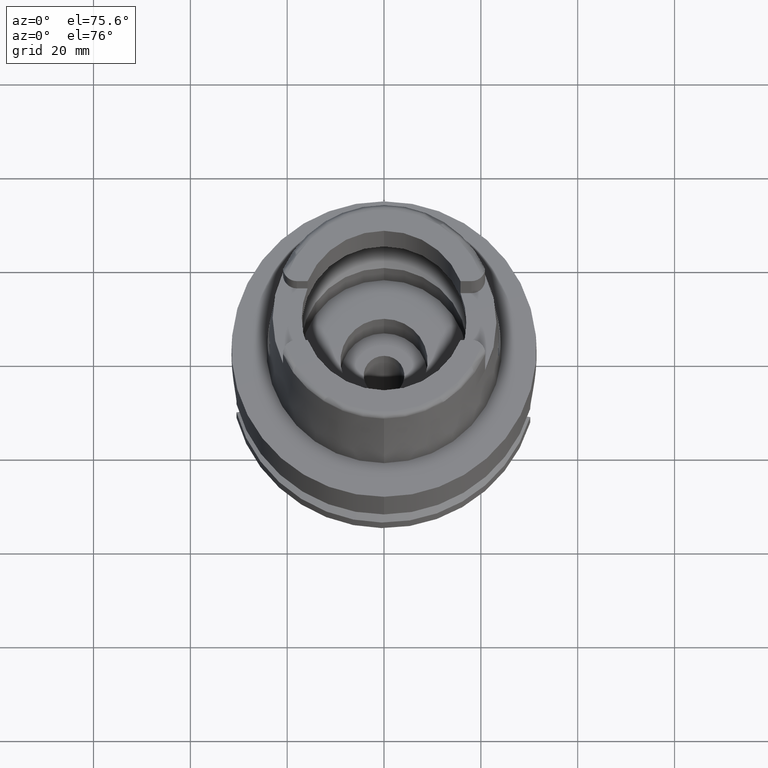
[diagram: clean part render]
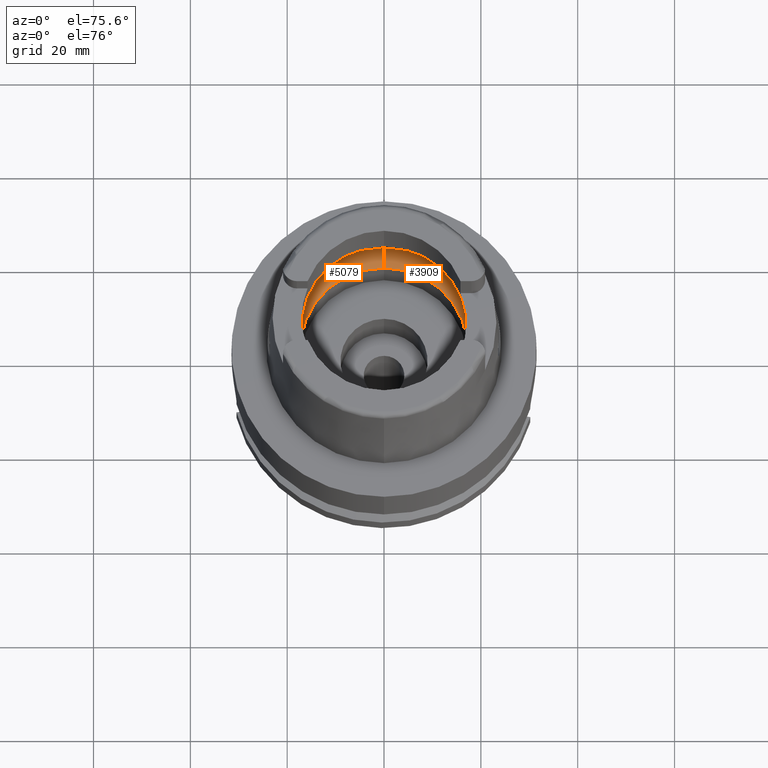
[diagram: same view with one multi-face feature highlighted, each face labeled with its STEP entity id]
A machine part, auxiliary view. The highlighted faces form ONE feature: a constant-radius fillet chain: 2 tangent blend faces with common blend radius 8 mm. The faces share edges in the B-rep.
Their STEP definitions:
[1] entity #3909 (Torus):
#37 = CARTESIAN_POINT ( 'NONE',  ( 19.93292500493674524, -1.081634238850528451, 5.408973163817647034 ) ) ;
#45 = CIRCLE ( 'NONE', #4938, 20.00000000000000000 ) ;
#123 = CARTESIAN_POINT ( 'NONE',  ( 19.84575864665999845, 2.479085262491000030, 6.186348233825000875 ) ) ;
#149 = CARTESIAN_POINT ( 'NONE',  ( 19.92517798419736508, 1.343609062691706768, 5.498960846759680443 ) ) ;
#214 = EDGE_CURVE ( 'NONE', #2460, #4014, #45, .T. ) ;
#365 = EDGE_CURVE ( 'NONE', #4602, #2460, #4300, .T. ) ;
#466 = CARTESIAN_POINT ( 'NONE',  ( 0.0000000000000000000, 12.00000000000000000, 6.186348233825000875 ) ) ;
#505 = B_SPLINE_CURVE_WITH_KNOTS ( 'NONE', 3,
 ( #3383, #4713, #5602, #1736, #1770, #37, #5167, #3010, #4745, #2587, #4315, #4773, #4690, #883, #4342 ),
 .UNSPECIFIED., .F., .F.,
 ( 4, 2, 2, 1, 1, 1, 2, 2, 4 ),
 ( 0.0000000000000000000, 0.2499999999999987788, 0.3749999999999982792, 0.4374999999999980571, 0.4687499999999978906, 0.4843749999999975020, 0.4921874999999975575, 0.4999999999999975575, 1.000000000000000000 ),
 .UNSPECIFIED. ) ;
#573 = CARTESIAN_POINT ( 'NONE',  ( 19.92391571847978327, 1.379818936262329210, 5.513021260670505796 ) ) ;
#608 = CARTESIAN_POINT ( 'NONE',  ( 19.94501428475999916, 0.0000000000000000000, 5.250000000000000000 ) ) ;
#660 = DIRECTION ( 'NONE',  ( 0.0000000000000000000, 0.0000000000000000000, 1.000000000000000000 ) ) ;
#724 = ORIENTED_EDGE ( 'NONE', *, *, #214, .F. ) ;
#883 = CARTESIAN_POINT ( 'NONE',  ( 19.88332301270218849, -2.178372191595286722, 5.921392438207989883 ) ) ;
#926 = CARTESIAN_POINT ( 'NONE',  ( 0.0000000000000000000, -17.25000000000000000, 0.1500000000000999700 ) ) ;
#938 = ORIENTED_EDGE ( 'NONE', *, *, #3541, .F. ) ;
#1004 = CARTESIAN_POINT ( 'NONE',  ( 19.91448538158095616, 1.610508053762637504, 5.612924102263966653 ) ) ;
#1075 = EDGE_LOOP ( 'NONE', ( #1702, #724, #2070, #938, #3111, #5162, #4305 ) ) ;
#1218 = DIRECTION ( 'NONE',  ( 0.0000000000000000000, 0.0000000000000000000, -1.000000000000000000 ) ) ;
#1262 = FACE_OUTER_BOUND ( 'NONE', #1075, .T. ) ;
#1431 = CARTESIAN_POINT ( 'NONE',  ( 19.88058969236887918, 2.158413152842832083, 5.925203484518751118 ) ) ;
#1633 = DIRECTION ( 'NONE',  ( -1.000000000000000000, 0.0000000000000000000, 0.0000000000000000000 ) ) ;
#1638 = DIRECTION ( 'NONE',  ( 0.0000000000000000000, 1.000000000000000000, 0.0000000000000000000 ) ) ;
#1661 = CARTESIAN_POINT ( 'NONE',  ( 0.0000000000000000000, 20.00000000000000000, 6.186348233825000875 ) ) ;
#1702 = ORIENTED_EDGE ( 'NONE', *, *, #2694, .F. ) ;
#1729 = EDGE_CURVE ( 'NONE', #4502, #5345, #2371, .T. ) ;
#1736 = CARTESIAN_POINT ( 'NONE',  ( 19.93856666885426776, -0.8185636124059638696, 5.338679045133562617 ) ) ;
#1770 = CARTESIAN_POINT ( 'NONE',  ( 19.93655178888372248, -0.9261198900591437466, 5.364559530321087344 ) ) ;
#1922 = VERTEX_POINT ( 'NONE', #926 ) ;
#1991 = DIRECTION ( 'NONE',  ( 0.9922879323327794543, -0.1239542631244973381, 0.0000000000000000000 ) ) ;
#2031 = AXIS2_PLACEMENT_3D ( 'NONE', #2421, #1633, #4171 ) ;
#2036 = AXIS2_PLACEMENT_3D ( 'NONE', #466, #5269, #5300 ) ;
#2070 = ORIENTED_EDGE ( 'NONE', *, *, #365, .F. ) ;
#2175 = VERTEX_POINT ( 'NONE', #608 ) ;
#2332 = CARTESIAN_POINT ( 'NONE',  ( 19.94501428475999916, 0.4960402853743813290, 5.250000000000000888 ) ) ;
#2371 = CIRCLE ( 'NONE', #3102, 20.00000000000001421 ) ;
#2401 = B_SPLINE_CURVE_WITH_KNOTS ( 'NONE', 3,
 ( #123, #5318, #1431, #3162, #4891, #1004, #2722, #4461, #573, #4031, #149, #2754, #4491, #2332, #4056 ),
 .UNSPECIFIED., .F., .F.,
 ( 4, 2, 2, 1, 1, 1, 2, 2, 4 ),
 ( 0.0000000000000000000, 0.2500000000000098810, 0.3750000000000143774, 0.4375000000000168199, 0.4687500000000177636, 0.4843750000000178746, 0.4921875000000178191, 0.5000000000000177636, 1.000000000000000000 ),
 .UNSPECIFIED. ) ;
#2421 = CARTESIAN_POINT ( 'NONE',  ( 0.0000000000000000000, -12.00000000000000000, 6.186348233825000875 ) ) ;
#2437 = EDGE_CURVE ( 'NONE', #1922, #5345, #5570, .T. ) ;
#2460 = VERTEX_POINT ( 'NONE', #1661 ) ;
#2497 = CARTESIAN_POINT ( 'NONE',  ( 0.0000000000000000000, 0.0000000000000000000, 6.186348233825000875 ) ) ;
#2587 = CARTESIAN_POINT ( 'NONE',  ( 19.92646951840612246, -1.305026090026948804, 5.484399317726082579 ) ) ;
#2694 = EDGE_CURVE ( 'NONE', #4014, #2175, #2401, .T. ) ;
#2722 = CARTESIAN_POINT ( 'NONE',  ( 19.91819973341328875, 1.528786876979157716, 5.574825955112756581 ) ) ;
#2754 = CARTESIAN_POINT ( 'NONE',  ( 19.92547020324161622, 1.335027099705274445, 5.495682146681705404 ) ) ;
#2918 = CIRCLE ( 'NONE', #4367, 17.25000000000000000 ) ;
#2924 = DIRECTION ( 'NONE',  ( 0.0000000000000000000, 1.000000000000000000, 0.0000000000000000000 ) ) ;
#3005 = EDGE_CURVE ( 'NONE', #2175, #4502, #505, .T. ) ;
#3009 = DIRECTION ( 'NONE',  ( 0.0000000000000000000, 0.0000000000000000000, 1.000000000000000000 ) ) ;
#3010 = CARTESIAN_POINT ( 'NONE',  ( 19.92840411800285594, -1.244366584479167814, 5.462313247185328180 ) ) ;
#3102 = AXIS2_PLACEMENT_3D ( 'NONE', #3247, #4955, #1991 ) ;
#3111 = ORIENTED_EDGE ( 'NONE', *, *, #2437, .T. ) ;
#3162 = CARTESIAN_POINT ( 'NONE',  ( 19.90056795285840252, 1.871072381427654641, 5.748193827892907670 ) ) ;
#3171 = CARTESIAN_POINT ( 'NONE',  ( 19.84575864665999845, -2.479085262491000030, 6.186348233825000875 ) ) ;
#3247 = CARTESIAN_POINT ( 'NONE',  ( 0.0000000000000000000, 0.0000000000000000000, 6.186348233825000875 ) ) ;
#3306 = DIRECTION ( 'NONE',  ( 0.0000000000000000000, -1.000000000000000000, 0.0000000000000000000 ) ) ;
#3383 = CARTESIAN_POINT ( 'NONE',  ( 19.94501428475999916, 0.0000000000000000000, 5.250000000000000000 ) ) ;
#3541 = EDGE_CURVE ( 'NONE', #1922, #4602, #2918, .T. ) ;
#3909 = ADVANCED_FACE ( 'NONE', ( #1262 ), #4091, .F. ) ;
#4014 = VERTEX_POINT ( 'NONE', #4405 ) ;
#4031 = CARTESIAN_POINT ( 'NONE',  ( 19.92467627844355249, 1.358116918539703288, 5.504563131532022702 ) ) ;
#4056 = CARTESIAN_POINT ( 'NONE',  ( 19.94501428475999916, 0.0000000000000000000, 5.250000000000000000 ) ) ;
#4091 = TOROIDAL_SURFACE ( 'NONE', #4274, 12.00000000000000000, 8.000000000000000000 ) ;
#4171 = DIRECTION ( 'NONE',  ( 0.0000000000000000000, -0.6562500000000006661, -0.7545435292281016393 ) ) ;
#4274 = AXIS2_PLACEMENT_3D ( 'NONE', #2497, #3009, #2924 ) ;
#4300 = CIRCLE ( 'NONE', #2036, 7.999999999999992895 ) ;
#4305 = ORIENTED_EDGE ( 'NONE', *, *, #3005, .F. ) ;
#4315 = CARTESIAN_POINT ( 'NONE',  ( 19.92607283891191727, -1.317061137141596561, 5.488890315884850324 ) ) ;
#4342 = CARTESIAN_POINT ( 'NONE',  ( 19.84575864665999845, -2.479085262491000030, 6.186348233825000875 ) ) ;
#4343 = CARTESIAN_POINT ( 'NONE',  ( 0.0000000000000000000, -20.00000000000000000, 6.186348233825000875 ) ) ;
#4367 = AXIS2_PLACEMENT_3D ( 'NONE', #5461, #660, #3306 ) ;
#4405 = CARTESIAN_POINT ( 'NONE',  ( 19.84575864665999845, 2.479085262491000030, 6.186348233825000875 ) ) ;
#4461 = CARTESIAN_POINT ( 'NONE',  ( 19.92208506923287104, 1.430037391292800830, 5.533134286468000873 ) ) ;
#4491 = CARTESIAN_POINT ( 'NONE',  ( 19.93856675271270618, 0.9459631445367676639, 5.348221889603026469 ) ) ;
#4502 = VERTEX_POINT ( 'NONE', #3171 ) ;
#4602 = VERTEX_POINT ( 'NONE', #5041 ) ;
#4690 = CARTESIAN_POINT ( 'NONE',  ( 19.90996060949646207, -1.795819319521763990, 5.670329520825307057 ) ) ;
#4713 = CARTESIAN_POINT ( 'NONE',  ( 19.94501428476000271, -0.2480012822880987844, 5.249999999999999112 ) ) ;
#4745 = CARTESIAN_POINT ( 'NONE',  ( 19.92705981527248937, -1.286926606873724177, 5.477698152406411225 ) ) ;
#4773 = CARTESIAN_POINT ( 'NONE',  ( 19.92591691872320681, -1.321755966737424792, 5.490652197696729075 ) ) ;
#4891 = CARTESIAN_POINT ( 'NONE',  ( 19.90654459260023401, 1.770006697072565638, 5.691880654306289422 ) ) ;
#4938 = AXIS2_PLACEMENT_3D ( 'NONE', #5153, #1218, #1638 ) ;
#4955 = DIRECTION ( 'NONE',  ( 0.0000000000000000000, 0.0000000000000000000, -1.000000000000000000 ) ) ;
#5041 = CARTESIAN_POINT ( 'NONE',  ( 0.0000000000000000000, 17.25000000000000000, 0.1500000000000999700 ) ) ;
#5153 = CARTESIAN_POINT ( 'NONE',  ( 0.0000000000000000000, 0.0000000000000000000, 6.186348233825000875 ) ) ;
#5162 = ORIENTED_EDGE ( 'NONE', *, *, #1729, .F. ) ;
#5167 = CARTESIAN_POINT ( 'NONE',  ( 19.93096049696546856, -1.157939335591919860, 5.432578789541300246 ) ) ;
#5269 = DIRECTION ( 'NONE',  ( 1.000000000000000000, 0.0000000000000000000, 0.0000000000000000000 ) ) ;
#5300 = DIRECTION ( 'NONE',  ( 0.0000000000000000000, 0.6562500000000006661, -0.7545435292281016393 ) ) ;
#5318 = CARTESIAN_POINT ( 'NONE',  ( 19.86453973035713005, 2.328737527431126608, 6.053878089965426312 ) ) ;
#5345 = VERTEX_POINT ( 'NONE', #4343 ) ;
#5461 = CARTESIAN_POINT ( 'NONE',  ( 0.0000000000000000000, 0.0000000000000000000, 0.1500000000000999700 ) ) ;
#5570 = CIRCLE ( 'NONE', #2031, 7.999999999999992895 ) ;
#5602 = CARTESIAN_POINT ( 'NONE',  ( 19.94340238078356720, -0.4850176595367738930, 5.274610361541468784 ) ) ;
[2] entity #5079 (Torus):
#114 = EDGE_LOOP ( 'NONE', ( #1363, #1141, #3877, #2068, #4974, #2518, #2858 ) ) ;
#206 = CARTESIAN_POINT ( 'NONE',  ( -19.91819960699401193, -1.528790138807751164, 5.574827418276589341 ) ) ;
#280 = CARTESIAN_POINT ( 'NONE',  ( -19.88332310116147283, 2.178371483505385786, 5.921391814315846602 ) ) ;
#327 = VERTEX_POINT ( 'NONE', #3612 ) ;
#365 = EDGE_CURVE ( 'NONE', #4602, #2460, #4300, .T. ) ;
#450 = DIRECTION ( 'NONE',  ( 0.0000000000000000000, -1.000000000000000000, 0.0000000000000000000 ) ) ;
#466 = CARTESIAN_POINT ( 'NONE',  ( 0.0000000000000000000, 12.00000000000000000, 6.186348233825000875 ) ) ;
#502 = CARTESIAN_POINT ( 'NONE',  ( 0.0000000000000000000, 0.0000000000000000000, 0.1500000000000999700 ) ) ;
#682 = CARTESIAN_POINT ( 'NONE',  ( -19.92591704426989452, 1.321751840890049490, 5.490650643677390974 ) ) ;
#746 = CARTESIAN_POINT ( 'NONE',  ( -19.94501428475999916, 0.0000000000000000000, 5.250000000000000000 ) ) ;
#753 = TOROIDAL_SURFACE ( 'NONE', #2382, 12.00000000000000000, 8.000000000000000000 ) ;
#921 = DIRECTION ( 'NONE',  ( -0.9922879323327794543, 0.1239542631244973381, 0.0000000000000000000 ) ) ;
#926 = CARTESIAN_POINT ( 'NONE',  ( 0.0000000000000000000, -17.25000000000000000, 0.1500000000000999700 ) ) ;
#941 = AXIS2_PLACEMENT_3D ( 'NONE', #3509, #3081, #921 ) ;
#1019 = CIRCLE ( 'NONE', #5098, 17.25000000000000000 ) ;
#1045 = CARTESIAN_POINT ( 'NONE',  ( -19.90056784349247820, -1.871074272730828048, 5.748194928871746434 ) ) ;
#1089 = CARTESIAN_POINT ( 'NONE',  ( -19.93655184384261858, 0.9261166967963114782, 5.364558725656097593 ) ) ;
#1141 = ORIENTED_EDGE ( 'NONE', *, *, #2437, .F. ) ;
#1175 = CARTESIAN_POINT ( 'NONE',  ( -19.93096058823649130, 1.157935579649966629, 5.432577573767241041 ) ) ;
#1223 = EDGE_CURVE ( 'NONE', #5345, #2669, #4908, .T. ) ;
#1363 = ORIENTED_EDGE ( 'NONE', *, *, #1223, .F. ) ;
#1462 = CARTESIAN_POINT ( 'NONE',  ( -19.84575864665999845, -2.479085262491000030, 6.186348233825000875 ) ) ;
#1598 = EDGE_CURVE ( 'NONE', #4602, #1922, #1019, .T. ) ;
#1610 = CARTESIAN_POINT ( 'NONE',  ( -19.91448525756728927, -1.610510976265786987, 5.612925495665686881 ) ) ;
#1633 = DIRECTION ( 'NONE',  ( -1.000000000000000000, 0.0000000000000000000, 0.0000000000000000000 ) ) ;
#1634 = CARTESIAN_POINT ( 'NONE',  ( -19.92391559123418787, -1.379822842001579009, 5.513022806674898746 ) ) ;
#1661 = CARTESIAN_POINT ( 'NONE',  ( 0.0000000000000000000, 20.00000000000000000, 6.186348233825000875 ) ) ;
#1922 = VERTEX_POINT ( 'NONE', #926 ) ;
#1963 = CARTESIAN_POINT ( 'NONE',  ( -19.94501428476000271, 0.2480002814738951344, 5.249999999999999112 ) ) ;
#1986 = CARTESIAN_POINT ( 'NONE',  ( -19.94340239125193293, 0.4850157974226460000, 5.274610163457148282 ) ) ;
#2018 = CARTESIAN_POINT ( 'NONE',  ( -19.84575864665999845, 2.479085262489999941, 6.186348233825000875 ) ) ;
#2031 = AXIS2_PLACEMENT_3D ( 'NONE', #2421, #1633, #4171 ) ;
#2036 = AXIS2_PLACEMENT_3D ( 'NONE', #466, #5269, #5300 ) ;
#2068 = ORIENTED_EDGE ( 'NONE', *, *, #365, .T. ) ;
#2275 = CARTESIAN_POINT ( 'NONE',  ( -19.84575864665999845, 2.479085262489999941, 6.186348233825000875 ) ) ;
#2308 = FACE_OUTER_BOUND ( 'NONE', #114, .T. ) ;
#2313 = DIRECTION ( 'NONE',  ( 0.0000000000000000000, 0.0000000000000000000, 1.000000000000000000 ) ) ;
#2333 = CARTESIAN_POINT ( 'NONE',  ( 0.0000000000000000000, 0.0000000000000000000, 6.186348233825000875 ) ) ;
#2364 = CARTESIAN_POINT ( 'NONE',  ( -19.90654447560747542, -1.770008974173177263, 5.691881888190377659 ) ) ;
#2382 = AXIS2_PLACEMENT_3D ( 'NONE', #2333, #4057, #5344 ) ;
#2386 = CARTESIAN_POINT ( 'NONE',  ( -19.94501428475999916, 0.0000000000000000000, 5.250000000000000000 ) ) ;
#2397 = CARTESIAN_POINT ( 'NONE',  ( -19.92208494194046509, -1.430041077684033990, 5.533135808937241329 ) ) ;
#2421 = CARTESIAN_POINT ( 'NONE',  ( 0.0000000000000000000, -12.00000000000000000, 6.186348233825000875 ) ) ;
#2437 = EDGE_CURVE ( 'NONE', #1922, #5345, #5570, .T. ) ;
#2460 = VERTEX_POINT ( 'NONE', #1661 ) ;
#2518 = ORIENTED_EDGE ( 'NONE', *, *, #2788, .F. ) ;
#2669 = VERTEX_POINT ( 'NONE', #3999 ) ;
#2788 = EDGE_CURVE ( 'NONE', #327, #5000, #4625, .T. ) ;
#2858 = ORIENTED_EDGE ( 'NONE', *, *, #4597, .F. ) ;
#3038 = CARTESIAN_POINT ( 'NONE',  ( 0.0000000000000000000, 0.0000000000000000000, 6.186348233825000875 ) ) ;
#3081 = DIRECTION ( 'NONE',  ( 0.0000000000000000000, 0.0000000000000000000, -1.000000000000000000 ) ) ;
#3193 = CARTESIAN_POINT ( 'NONE',  ( -19.86453968564131500, -2.328737885376345407, 6.053878405347992597 ) ) ;
#3240 = CARTESIAN_POINT ( 'NONE',  ( -19.92607296192538513, 1.317057065037986030, 5.488888788417265907 ) ) ;
#3351 = CARTESIAN_POINT ( 'NONE',  ( -19.93292508344945801, 1.081630659659294169, 5.408972087979956989 ) ) ;
#3358 = CARTESIAN_POINT ( 'NONE',  ( -19.92517785718085577, -1.343613127942956842, 5.498962406970089312 ) ) ;
#3362 = EDGE_CURVE ( 'NONE', #5000, #2460, #4650, .T. ) ;
#3509 = CARTESIAN_POINT ( 'NONE',  ( 0.0000000000000000000, 0.0000000000000000000, 6.186348233825000875 ) ) ;
#3612 = CARTESIAN_POINT ( 'NONE',  ( -19.94501428475999916, 0.0000000000000000000, 5.250000000000000000 ) ) ;
#3661 = CARTESIAN_POINT ( 'NONE',  ( -19.92705993187612989, 1.286922590644232978, 5.477696685208107930 ) ) ;
#3688 = CARTESIAN_POINT ( 'NONE',  ( -19.93856671072771292, 0.8185607198028845843, 5.338678409714962214 ) ) ;
#3772 = CARTESIAN_POINT ( 'NONE',  ( -19.90996073982917380, 1.795817278995830657, 5.670328124222732136 ) ) ;
#3877 = ORIENTED_EDGE ( 'NONE', *, *, #1598, .F. ) ;
#3994 = AXIS2_PLACEMENT_3D ( 'NONE', #3038, #4795, #450 ) ;
#3999 = CARTESIAN_POINT ( 'NONE',  ( -19.84575864665999845, -2.479085262491000030, 6.186348233825000875 ) ) ;
#4057 = DIRECTION ( 'NONE',  ( 0.0000000000000000000, 0.0000000000000000000, 1.000000000000000000 ) ) ;
#4140 = B_SPLINE_CURVE_WITH_KNOTS ( 'NONE', 3,
 ( #1462, #3193, #4927, #1045, #2364, #1610, #206, #2397, #1634, #5092, #3358, #4981, #4549, #4580, #746 ),
 .UNSPECIFIED., .F., .F.,
 ( 4, 2, 2, 1, 1, 1, 2, 2, 4 ),
 ( 0.0000000000000000000, 0.2500000000000051070, 0.3750000000000077716, 0.4375000000000091038, 0.4687500000000098255, 0.4843750000000101030, 0.4921875000000099920, 0.5000000000000098810, 1.000000000000000000 ),
 .UNSPECIFIED. ) ;
#4171 = DIRECTION ( 'NONE',  ( 0.0000000000000000000, -0.6562500000000006661, -0.7545435292281016393 ) ) ;
#4227 = CARTESIAN_POINT ( 'NONE',  ( -19.92646963884338263, 1.305022040076338818, 5.484397814373272340 ) ) ;
#4300 = CIRCLE ( 'NONE', #2036, 7.999999999999992895 ) ;
#4343 = CARTESIAN_POINT ( 'NONE',  ( 0.0000000000000000000, -20.00000000000000000, 6.186348233825000875 ) ) ;
#4538 = CARTESIAN_POINT ( 'NONE',  ( -19.92840422587602944, 1.244362650384072122, 5.462311864171463860 ) ) ;
#4549 = CARTESIAN_POINT ( 'NONE',  ( -19.93856671042052398, -0.9459665778997381480, 5.348222674928019060 ) ) ;
#4580 = CARTESIAN_POINT ( 'NONE',  ( -19.94501428475999560, -0.4960423020627297008, 5.249999999999995559 ) ) ;
#4597 = EDGE_CURVE ( 'NONE', #2669, #327, #4140, .T. ) ;
#4602 = VERTEX_POINT ( 'NONE', #5041 ) ;
#4625 = B_SPLINE_CURVE_WITH_KNOTS ( 'NONE', 3,
 ( #2386, #1963, #1986, #3688, #1089, #3351, #1175, #4538, #3661, #4227, #3240, #682, #3772, #280, #2018 ),
 .UNSPECIFIED., .F., .F.,
 ( 4, 2, 2, 1, 1, 1, 2, 2, 4 ),
 ( 0.0000000000000000000, 0.2499999999999956146, 0.3749999999999934497, 0.4374999999999923395, 0.4687499999999917288, 0.4843749999999914513, 0.4921874999999914513, 0.4999999999999915623, 1.000000000000000000 ),
 .UNSPECIFIED. ) ;
#4650 = CIRCLE ( 'NONE', #941, 20.00000000000001421 ) ;
#4795 = DIRECTION ( 'NONE',  ( 0.0000000000000000000, 0.0000000000000000000, -1.000000000000000000 ) ) ;
#4896 = DIRECTION ( 'NONE',  ( 0.0000000000000000000, 1.000000000000000000, 0.0000000000000000000 ) ) ;
#4908 = CIRCLE ( 'NONE', #3994, 20.00000000000000000 ) ;
#4927 = CARTESIAN_POINT ( 'NONE',  ( -19.88058961472209774, -2.158414018199903417, 5.925204145833316893 ) ) ;
#4974 = ORIENTED_EDGE ( 'NONE', *, *, #3362, .F. ) ;
#4981 = CARTESIAN_POINT ( 'NONE',  ( -19.92547007504345302, -1.335031240339097369, 5.495683724100088874 ) ) ;
#5000 = VERTEX_POINT ( 'NONE', #2275 ) ;
#5041 = CARTESIAN_POINT ( 'NONE',  ( 0.0000000000000000000, 17.25000000000000000, 0.1500000000000999700 ) ) ;
#5079 = ADVANCED_FACE ( 'NONE', ( #2308 ), #753, .F. ) ;
#5092 = CARTESIAN_POINT ( 'NONE',  ( -19.92467615132159864, -1.358120919786871328, 5.504564686247708671 ) ) ;
#5098 = AXIS2_PLACEMENT_3D ( 'NONE', #502, #2313, #4896 ) ;
#5269 = DIRECTION ( 'NONE',  ( 1.000000000000000000, 0.0000000000000000000, 0.0000000000000000000 ) ) ;
#5300 = DIRECTION ( 'NONE',  ( 0.0000000000000000000, 0.6562500000000006661, -0.7545435292281016393 ) ) ;
#5344 = DIRECTION ( 'NONE',  ( 0.0000000000000000000, 1.000000000000000000, 0.0000000000000000000 ) ) ;
#5345 = VERTEX_POINT ( 'NONE', #4343 ) ;
#5570 = CIRCLE ( 'NONE', #2031, 7.999999999999992895 ) ;